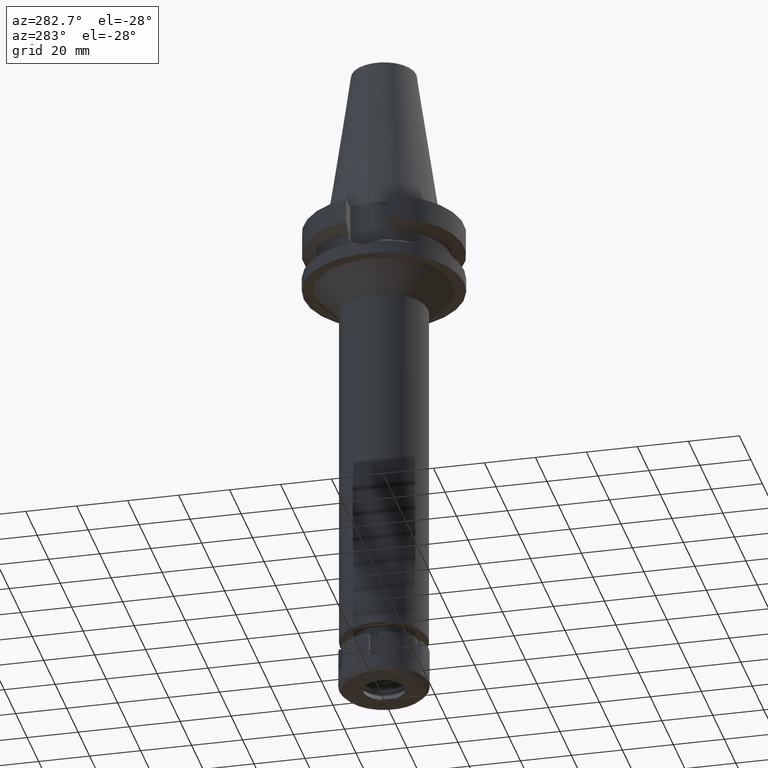
[diagram: clean part render]
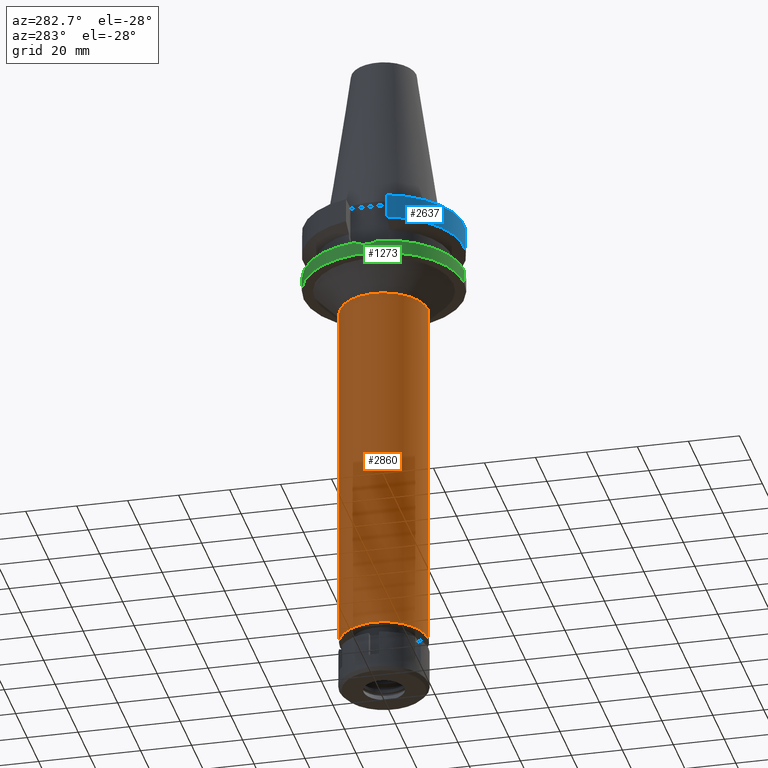
[diagram: same view with three faces highlighted in distinct colors, each labeled with its STEP entity id]
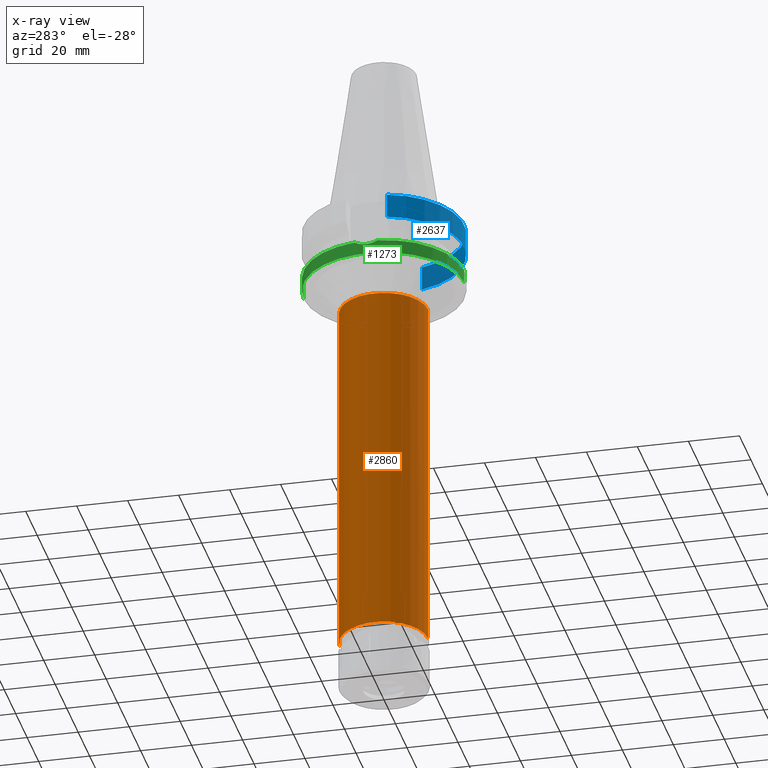
[diagram: x-ray of the same camera — body ghosted, the three highlighted faces saturated]
A machine part, auxiliary view with three faces highlighted in distinct colors.
The next image is the same camera in x-ray (body ghosted, the three faces saturated) — at least one of them is partly hidden behind the body in this view.
Their STEP definitions:

[orange] entity #2860 — the highlighted cylindrical surface (partial cylindrical patch) has radius 17.25 mm, axis along (0, 0, -1).
#95 = CARTESIAN_POINT ( 'NONE',  ( 0.0000000000000000000, 0.0000000000000000000, -37.00000000000000000 ) ) ;
#97 = DIRECTION ( 'NONE',  ( 0.0000000000000000000, 0.0000000000000000000, -1.000000000000000000 ) ) ;
#224 = AXIS2_PLACEMENT_3D ( 'NONE', #3164, #2018, #2072 ) ;
#265 = EDGE_LOOP ( 'NONE', ( #1912, #1731, #3417, #2134 ) ) ;
#292 = VECTOR ( 'NONE', #97, 1000.000000000000000 ) ;
#413 = AXIS2_PLACEMENT_3D ( 'NONE', #2722, #2669, #2406 ) ;
#554 = CARTESIAN_POINT ( 'NONE',  ( 0.0000000000000000000, -17.25000000000000000, -37.00000000000000000 ) ) ;
#817 = AXIS2_PLACEMENT_3D ( 'NONE', #95, #1234, #2348 ) ;
#847 = VERTEX_POINT ( 'NONE', #554 ) ;
#892 = VERTEX_POINT ( 'NONE', #2875 ) ;
#1078 = CARTESIAN_POINT ( 'NONE',  ( 0.0000000000000000000, 17.25000000000000000, -37.00000000000000000 ) ) ;
#1119 = CIRCLE ( 'NONE', #224, 17.25000000000000000 ) ;
#1234 = DIRECTION ( 'NONE',  ( 0.0000000000000000000, 0.0000000000000000000, -1.000000000000000000 ) ) ;
#1420 = VECTOR ( 'NONE', #2419, 1000.000000000000000 ) ;
#1509 = EDGE_CURVE ( 'NONE', #847, #2022, #2397, .T. ) ;
#1731 = ORIENTED_EDGE ( 'NONE', *, *, #2779, .F. ) ;
#1912 = ORIENTED_EDGE ( 'NONE', *, *, #2344, .T. ) ;
#2018 = DIRECTION ( 'NONE',  ( 0.0000000000000000000, 0.0000000000000000000, 1.000000000000000000 ) ) ;
#2022 = VERTEX_POINT ( 'NONE', #3546 ) ;
#2042 = LINE ( 'NONE', #2910, #292 ) ;
#2072 = DIRECTION ( 'NONE',  ( 0.0000000000000000000, 1.000000000000000000, 0.0000000000000000000 ) ) ;
#2133 = FACE_OUTER_BOUND ( 'NONE', #265, .T. ) ;
#2134 = ORIENTED_EDGE ( 'NONE', *, *, #3294, .T. ) ;
#2159 = LINE ( 'NONE', #1078, #1420 ) ;
#2344 = EDGE_CURVE ( 'NONE', #892, #3499, #1119, .T. ) ;
#2348 = DIRECTION ( 'NONE',  ( 0.0000000000000000000, -1.000000000000000000, 0.0000000000000000000 ) ) ;
#2397 = CIRCLE ( 'NONE', #817, 17.25000000000000000 ) ;
#2406 = DIRECTION ( 'NONE',  ( 0.0000000000000000000, -1.000000000000000000, 0.0000000000000000000 ) ) ;
#2419 = DIRECTION ( 'NONE',  ( 0.0000000000000000000, 0.0000000000000000000, -1.000000000000000000 ) ) ;
#2566 = CARTESIAN_POINT ( 'NONE',  ( 0.0000000000000000000, -17.25000000000000000, -179.5000000000000000 ) ) ;
#2669 = DIRECTION ( 'NONE',  ( 0.0000000000000000000, 0.0000000000000000000, -1.000000000000000000 ) ) ;
#2722 = CARTESIAN_POINT ( 'NONE',  ( 0.0000000000000000000, 2.183177848839999781E-14, 78.27000000000001023 ) ) ;
#2779 = EDGE_CURVE ( 'NONE', #847, #3499, #2042, .T. ) ;
#2860 = ADVANCED_FACE ( 'NONE', ( #2133 ), #3552, .T. ) ;
#2875 = CARTESIAN_POINT ( 'NONE',  ( 0.0000000000000000000, 17.25000000000000000, -179.5000000000000000 ) ) ;
#2910 = CARTESIAN_POINT ( 'NONE',  ( 0.0000000000000000000, -17.25000000000000000, -37.00000000000000000 ) ) ;
#3164 = CARTESIAN_POINT ( 'NONE',  ( 0.0000000000000000000, 2.183177848839999781E-14, -179.5000000000000000 ) ) ;
#3294 = EDGE_CURVE ( 'NONE', #2022, #892, #2159, .T. ) ;
#3417 = ORIENTED_EDGE ( 'NONE', *, *, #1509, .T. ) ;
#3499 = VERTEX_POINT ( 'NONE', #2566 ) ;
#3546 = CARTESIAN_POINT ( 'NONE',  ( 0.0000000000000000000, 17.25000000000000000, -37.00000000000000000 ) ) ;
#3552 = CYLINDRICAL_SURFACE ( 'NONE', #413, 17.25000000000000000 ) ;

[blue] entity #2637 — the highlighted cylindrical surface (partial cylindrical patch) has radius 31.5 mm, axis along (0, 0, -1).
#78 = DIRECTION ( 'NONE',  ( 0.0000000000000000000, 0.0000000000000000000, 1.000000000000000000 ) ) ;
#170 = CARTESIAN_POINT ( 'NONE',  ( 30.45402272279000044, -8.050000000000000711, -2.000000000000000000 ) ) ;
#263 = EDGE_CURVE ( 'NONE', #1975, #1038, #696, .T. ) ;
#378 = DIRECTION ( 'NONE',  ( 1.994621289529988906E-08, -7.545894673464957228E-08, 0.9999999999999968914 ) ) ;
#447 = DIRECTION ( 'NONE',  ( 0.0000000000000000000, 0.0000000000000000000, -1.000000000000000000 ) ) ;
#664 = DIRECTION ( 'NONE',  ( 0.0000000000000000000, -1.000000000000000000, 0.0000000000000000000 ) ) ;
#666 = ORIENTED_EDGE ( 'NONE', *, *, #1572, .T. ) ;
#696 = CIRCLE ( 'NONE', #2579, 31.50000000000000000 ) ;
#790 = DIRECTION ( 'NONE',  ( 0.0000000000000000000, 0.0000000000000000000, -1.000000000000000000 ) ) ;
#880 = AXIS2_PLACEMENT_3D ( 'NONE', #2831, #78, #664 ) ;
#894 = VECTOR ( 'NONE', #378, 1000.000000000000227 ) ;
#1038 = VERTEX_POINT ( 'NONE', #2852 ) ;
#1104 = FACE_OUTER_BOUND ( 'NONE', #3305, .T. ) ;
#1289 = DIRECTION ( 'NONE',  ( 0.0000000000000000000, -1.000000000000000000, 0.0000000000000000000 ) ) ;
#1399 = CYLINDRICAL_SURFACE ( 'NONE', #1531, 31.50000000000000000 ) ;
#1514 = LINE ( 'NONE', #2365, #894 ) ;
#1531 = AXIS2_PLACEMENT_3D ( 'NONE', #2517, #790, #2217 ) ;
#1542 = LINE ( 'NONE', #170, #2708 ) ;
#1572 = EDGE_CURVE ( 'NONE', #3590, #3104, #3282, .T. ) ;
#1597 = ORIENTED_EDGE ( 'NONE', *, *, #263, .T. ) ;
#1635 = ORIENTED_EDGE ( 'NONE', *, *, #2888, .F. ) ;
#1781 = ORIENTED_EDGE ( 'NONE', *, *, #3168, .F. ) ;
#1975 = VERTEX_POINT ( 'NONE', #3006 ) ;
#2217 = DIRECTION ( 'NONE',  ( 0.0000000000000000000, -1.000000000000000000, 0.0000000000000000000 ) ) ;
#2326 = CARTESIAN_POINT ( 'NONE',  ( 30.45402272279000044, -8.049999999999000622, -11.56550565266999975 ) ) ;
#2365 = CARTESIAN_POINT ( 'NONE',  ( -30.45402291358000113, -8.049999278195999253, -11.56551215380000031 ) ) ;
#2517 = CARTESIAN_POINT ( 'NONE',  ( 0.0000000000000000000, 2.183177848839999781E-14, 78.27000000000001023 ) ) ;
#2579 = AXIS2_PLACEMENT_3D ( 'NONE', #2682, #447, #1289 ) ;
#2637 = ADVANCED_FACE ( 'NONE', ( #1104 ), #1399, .T. ) ;
#2682 = CARTESIAN_POINT ( 'NONE',  ( 0.0000000000000000000, 2.183177848839999781E-14, -2.000000000000000000 ) ) ;
#2708 = VECTOR ( 'NONE', #3486, 999.9999999999998863 ) ;
#2831 = CARTESIAN_POINT ( 'NONE',  ( 0.0000000000000000000, 1.065333950388000029E-14, -11.56550565266999975 ) ) ;
#2852 = CARTESIAN_POINT ( 'NONE',  ( -30.45402272279000044, -8.050000000000000711, -2.000000000000000000 ) ) ;
#2888 = EDGE_CURVE ( 'NONE', #1975, #3104, #1542, .T. ) ;
#3006 = CARTESIAN_POINT ( 'NONE',  ( 30.45402272279000044, -8.050000000000000711, -2.000000000000000000 ) ) ;
#3104 = VERTEX_POINT ( 'NONE', #2326 ) ;
#3168 = EDGE_CURVE ( 'NONE', #3590, #1038, #1514, .T. ) ;
#3282 = CIRCLE ( 'NONE', #880, 31.50000000000000000 ) ;
#3305 = EDGE_LOOP ( 'NONE', ( #1781, #666, #1635, #1597 ) ) ;
#3486 = DIRECTION ( 'NONE',  ( -1.145023312779999569E-07, -4.331741411846998158E-07, -0.9999999999998997469 ) ) ;
#3590 = VERTEX_POINT ( 'NONE', #3599 ) ;
#3599 = CARTESIAN_POINT ( 'NONE',  ( -30.45402291358000113, -8.049999278195999253, -11.56551215380000031 ) ) ;

[green] entity #1273 — the highlighted cylindrical surface (partial cylindrical patch) has radius 31.5 mm, axis along (0, 0, -1).
#42 = ORIENTED_EDGE ( 'NONE', *, *, #1899, .T. ) ;
#140 = CARTESIAN_POINT ( 'NONE',  ( -31.41624095221434132, -2.295254155272896224, -22.66588935698173657 ) ) ;
#155 = CARTESIAN_POINT ( 'NONE',  ( -31.40255277900894271, 2.475889768939653290, -22.61002463155699971 ) ) ;
#171 = VERTEX_POINT ( 'NONE', #393 ) ;
#176 = CARTESIAN_POINT ( 'NONE',  ( -31.41213111299671112, 2.350866381998057975, -22.64912804183515149 ) ) ;
#179 = DIRECTION ( 'NONE',  ( 0.0000000000000000000, 1.099151708819000049E-13, -1.000000000000000000 ) ) ;
#189 = CARTESIAN_POINT ( 'NONE',  ( -31.28479214191619917, -3.750165691141344126, -22.12795444350948060 ) ) ;
#204 = CYLINDRICAL_SURFACE ( 'NONE', #2111, 31.50000000000000000 ) ;
#213 = CIRCLE ( 'NONE', #3217, 31.50000000000000000 ) ;
#319 = DIRECTION ( 'NONE',  ( 0.0000000000000000000, 0.0000000000000000000, -1.000000000000000000 ) ) ;
#348 = CARTESIAN_POINT ( 'NONE',  ( -31.17899877608999759, -4.485536235554000051, -21.63449434733000132 ) ) ;
#393 = CARTESIAN_POINT ( 'NONE',  ( 0.0000000000000000000, 31.50000000000000000, -27.00000000000000000 ) ) ;
#440 = CARTESIAN_POINT ( 'NONE',  ( -31.42491547507555438, -2.173842506311453260, -22.70121779109150140 ) ) ;
#484 = EDGE_CURVE ( 'NONE', #605, #885, #213, .T. ) ;
#491 = LINE ( 'NONE', #3541, #578 ) ;
#508 = DIRECTION ( 'NONE',  ( 0.0000000000000000000, 0.0000000000000000000, -1.000000000000000000 ) ) ;
#542 = B_SPLINE_CURVE_WITH_KNOTS ( 'NONE', 3,
 ( #1601, #739, #1301, #2102, #2689, #3214, #3001, #155, #1895, #2415, #176, #3556, #3527, #1269, #1847, #2967, #2139, #3491, #1564, #440, #2674, #140, #1032, #1582, #189, #2983 ),
 .UNSPECIFIED., .F., .F.,
 ( 4, 2, 2, 1, 1, 2, 2, 2, 2, 2, 1, 1, 2, 2, 4 ),
 ( 0.0000000000000000000, 0.1249999999999961697, 0.1874999999999943656, 0.2187499999999935052, 0.2343749999999931721, 0.2421874999999930334, 0.2499999999999928391, 0.4999999999999973355, 0.6249999999999994449, 0.6875000000000004441, 0.7187500000000009992, 0.7343750000000012212, 0.7421875000000013323, 0.7500000000000014433, 1.000000000000000000 ),
 .UNSPECIFIED. ) ;
#562 = DIRECTION ( 'NONE',  ( 0.0000000000000000000, -1.000000000000000000, 0.0000000000000000000 ) ) ;
#578 = VECTOR ( 'NONE', #2411, 1000.000000000000000 ) ;
#582 = CARTESIAN_POINT ( 'NONE',  ( 0.0000000000000000000, 2.183177848839999781E-14, 78.27000000000001023 ) ) ;
#605 = VERTEX_POINT ( 'NONE', #2611 ) ;
#635 = CARTESIAN_POINT ( 'NONE',  ( 0.0000000000000000000, 0.0000000000000000000, -21.63449434733000132 ) ) ;
#739 = CARTESIAN_POINT ( 'NONE',  ( -31.23229813591135340, 4.115051952873375996, -21.88310263216664353 ) ) ;
#788 = FACE_OUTER_BOUND ( 'NONE', #3343, .T. ) ;
#885 = VERTEX_POINT ( 'NONE', #348 ) ;
#1004 = CARTESIAN_POINT ( 'NONE',  ( 0.0000000000000000000, 31.50000000000000000, -21.63449434733000132 ) ) ;
#1032 = CARTESIAN_POINT ( 'NONE',  ( -31.41427454809974407, -2.322011783565708587, -22.65786880854819074 ) ) ;
#1053 = AXIS2_PLACEMENT_3D ( 'NONE', #2440, #2964, #2374 ) ;
#1118 = ORIENTED_EDGE ( 'NONE', *, *, #1138, .T. ) ;
#1138 = EDGE_CURVE ( 'NONE', #3400, #1441, #2055, .T. ) ;
#1210 = EDGE_CURVE ( 'NONE', #605, #2777, #491, .T. ) ;
#1231 = CARTESIAN_POINT ( 'NONE',  ( 0.0000000000000000000, 2.183177848839999781E-14, -27.00000000000000000 ) ) ;
#1269 = CARTESIAN_POINT ( 'NONE',  ( -31.49972673701174131, -0.3948342072354574239, -22.99944696574963032 ) ) ;
#1273 = ADVANCED_FACE ( 'NONE', ( #788 ), #204, .T. ) ;
#1277 = ORIENTED_EDGE ( 'NONE', *, *, #3195, .T. ) ;
#1301 = CARTESIAN_POINT ( 'NONE',  ( -31.27852074681750238, 3.743565660381450666, -22.08777115921828482 ) ) ;
#1441 = VERTEX_POINT ( 'NONE', #2240 ) ;
#1493 = ORIENTED_EDGE ( 'NONE', *, *, #1210, .F. ) ;
#1553 = DIRECTION ( 'NONE',  ( 0.0000000000000000000, 0.0000000000000000000, 1.000000000000000000 ) ) ;
#1564 = CARTESIAN_POINT ( 'NONE',  ( -31.43639083670400680, -2.003584991324236508, -22.74781440952283162 ) ) ;
#1582 = CARTESIAN_POINT ( 'NONE',  ( -31.36269640793801372, -3.013915827453162777, -22.44737495532165639 ) ) ;
#1601 = CARTESIAN_POINT ( 'NONE',  ( -31.17899877608999759, 4.485536235554000051, -21.63449434733000132 ) ) ;
#1847 = CARTESIAN_POINT ( 'NONE',  ( -31.49238591436164825, -0.7837771830511398585, -22.97145827097130422 ) ) ;
#1874 = VECTOR ( 'NONE', #179, 1000.000000000000000 ) ;
#1895 = CARTESIAN_POINT ( 'NONE',  ( -31.40748763924307241, 2.412034068383065666, -22.63017485189941524 ) ) ;
#1899 = EDGE_CURVE ( 'NONE', #1441, #171, #3021, .T. ) ;
#2055 = CIRCLE ( 'NONE', #1053, 31.50000000000001421 ) ;
#2102 = CARTESIAN_POINT ( 'NONE',  ( -31.33723953980386412, 3.199800677048310504, -22.33942933323677948 ) ) ;
#2111 = AXIS2_PLACEMENT_3D ( 'NONE', #582, #508, #562 ) ;
#2139 = CARTESIAN_POINT ( 'NONE',  ( -31.46151406161196107, -1.564578752677745710, -22.84902476766357537 ) ) ;
#2240 = CARTESIAN_POINT ( 'NONE',  ( 0.0000000000000000000, 31.50000000000000000, -21.63449434733000132 ) ) ;
#2298 = CIRCLE ( 'NONE', #2537, 31.50000000000000000 ) ;
#2340 = DIRECTION ( 'NONE',  ( 0.0000000000000000000, 1.000000000000000000, 0.0000000000000000000 ) ) ;
#2345 = ORIENTED_EDGE ( 'NONE', *, *, #2472, .F. ) ;
#2374 = DIRECTION ( 'NONE',  ( -0.9898094849552905306, 0.1423979757318985240, 0.0000000000000000000 ) ) ;
#2411 = DIRECTION ( 'NONE',  ( 0.0000000000000000000, -1.105773104655000034E-13, -1.000000000000000000 ) ) ;
#2415 = CARTESIAN_POINT ( 'NONE',  ( -31.41072225896494174, 2.369583156272561109, -22.64337830658925554 ) ) ;
#2440 = CARTESIAN_POINT ( 'NONE',  ( 0.0000000000000000000, 0.0000000000000000000, -21.63449434733000132 ) ) ;
#2472 = EDGE_CURVE ( 'NONE', #3400, #885, #542, .T. ) ;
#2537 = AXIS2_PLACEMENT_3D ( 'NONE', #1231, #1553, #2340 ) ;
#2611 = CARTESIAN_POINT ( 'NONE',  ( 0.0000000000000000000, -31.50000000000000000, -21.63449434733000132 ) ) ;
#2674 = CARTESIAN_POINT ( 'NONE',  ( -31.41974449095769018, -2.246704994986250981, -22.68016538451703568 ) ) ;
#2689 = CARTESIAN_POINT ( 'NONE',  ( -31.35504328357049886, 3.020738684358609039, -22.41411409846367064 ) ) ;
#2777 = VERTEX_POINT ( 'NONE', #2832 ) ;
#2832 = CARTESIAN_POINT ( 'NONE',  ( 0.0000000000000000000, -31.50000000000000000, -27.00000000000000000 ) ) ;
#2840 = ORIENTED_EDGE ( 'NONE', *, *, #484, .T. ) ;
#2964 = DIRECTION ( 'NONE',  ( 0.0000000000000000000, 0.0000000000000000000, -1.000000000000000000 ) ) ;
#2967 = CARTESIAN_POINT ( 'NONE',  ( -31.47058120875350440, -1.369142308593263468, -22.88516535462376567 ) ) ;
#2971 = CARTESIAN_POINT ( 'NONE',  ( -31.17899877608999759, 4.485536235554000051, -21.63449434733000132 ) ) ;
#2983 = CARTESIAN_POINT ( 'NONE',  ( -31.17899877608999759, -4.485536235554000051, -21.63449434733000132 ) ) ;
#3001 = CARTESIAN_POINT ( 'NONE',  ( -31.39045759056983442, 2.626111871401533460, -22.56055148599706328 ) ) ;
#3021 = LINE ( 'NONE', #1004, #1874 ) ;
#3135 = DIRECTION ( 'NONE',  ( 0.0000000000000000000, -1.000000000000000000, 0.0000000000000000000 ) ) ;
#3195 = EDGE_CURVE ( 'NONE', #171, #2777, #2298, .T. ) ;
#3214 = CARTESIAN_POINT ( 'NONE',  ( -31.37909511837726839, 2.756869707305369399, -22.51379599047054825 ) ) ;
#3217 = AXIS2_PLACEMENT_3D ( 'NONE', #635, #319, #3135 ) ;
#3343 = EDGE_LOOP ( 'NONE', ( #1118, #42, #1277, #1493, #2840, #2345 ) ) ;
#3400 = VERTEX_POINT ( 'NONE', #2971 ) ;
#3491 = CARTESIAN_POINT ( 'NONE',  ( -31.44521497299137280, -1.857319213147803572, -22.78344528792058554 ) ) ;
#3527 = CARTESIAN_POINT ( 'NONE',  ( -31.50016226169589828, 0.7553448563417176631, -23.00108167704655315 ) ) ;
#3541 = CARTESIAN_POINT ( 'NONE',  ( 0.0000000000000000000, -31.50000000000000000, -21.63449434733000132 ) ) ;
#3556 = CARTESIAN_POINT ( 'NONE',  ( -31.47151674138124022, 1.548317662709827847, -22.89141369090932443 ) ) ;